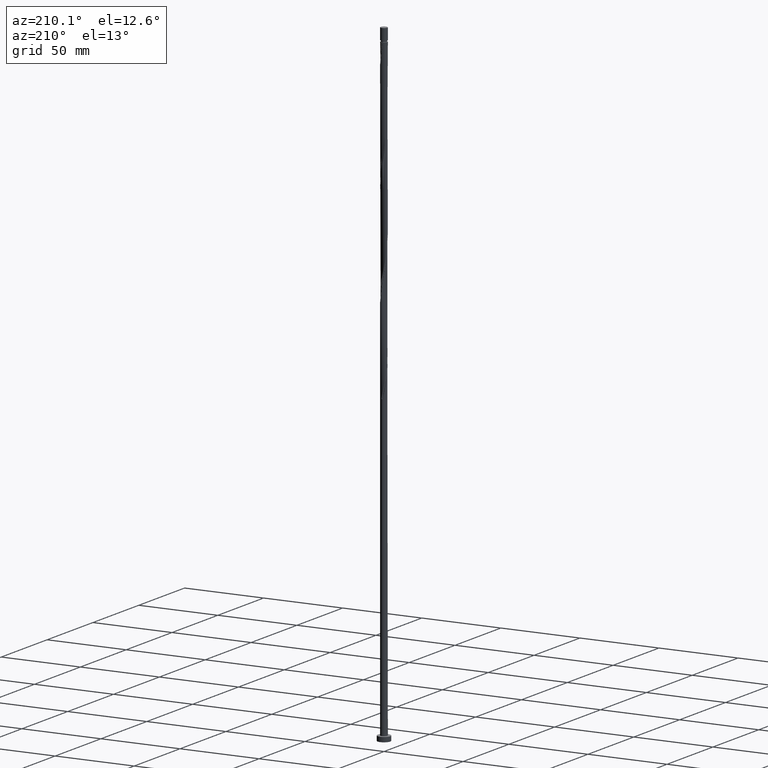
[diagram: clean part render]
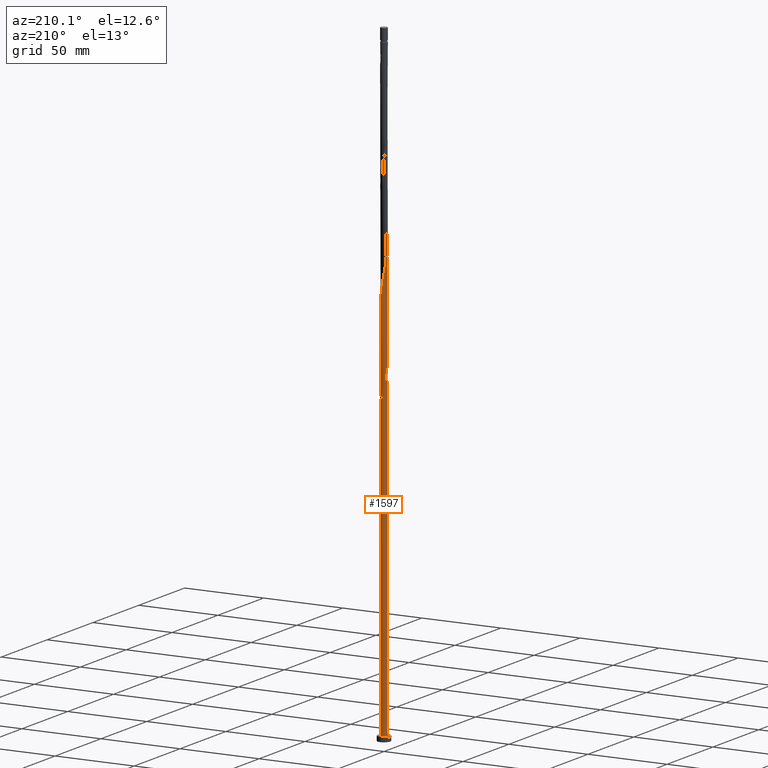
[diagram: same view with one face highlighted and labeled with its STEP entity id]
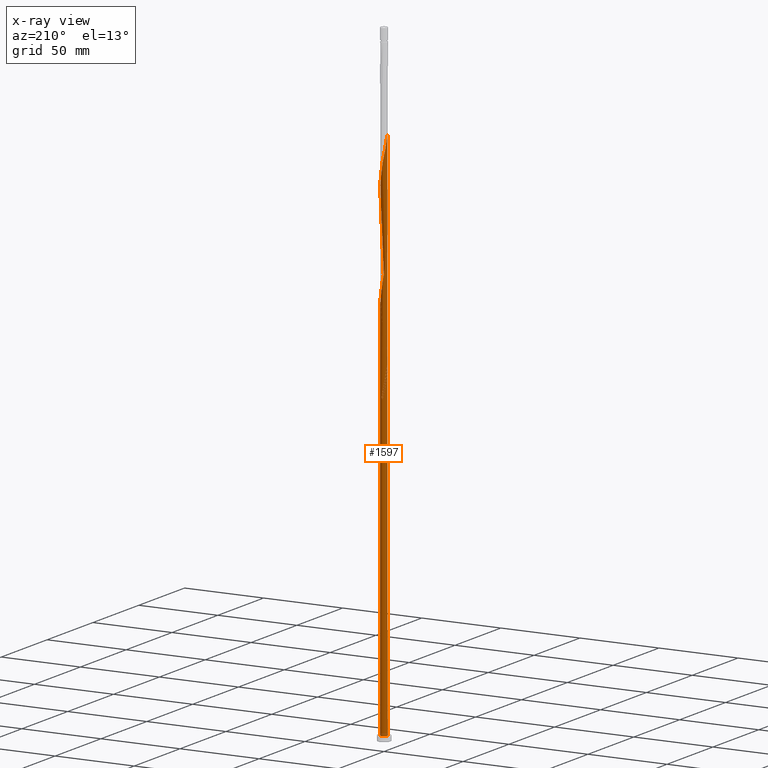
[diagram: x-ray of the same camera — body ghosted, the highlighted face saturated]
A machine part, auxiliary view. The second image highlights one B-rep face of the part: STEP entity #1597.
The next image is the same camera in x-ray: the body ghosted, the highlighted face saturated — about 0% of this face is hidden behind the body in this view.
In plain terms, the highlighted cylindrical surface (bore or boss wall) has radius 2.1 mm, axis along (-0, -0, -1).
Its self-contained STEP definition (entity closure, byte-faithful):
#1 = CARTESIAN_POINT ( 'NONE',  ( 1.427142655681894690, 1.556271400022308349, 248.6604106281170914 ) ) ;
#11 = CARTESIAN_POINT ( 'NONE',  ( 1.573332919195986168, 1.390907446731899810, 247.5492995170060340 ) ) ;
#14 = EDGE_CURVE ( 'NONE', #1037, #146, #1280, .T. ) ;
#20 = CARTESIAN_POINT ( 'NONE',  ( -0.4552981849463086372, -2.050049648858438989, 287.5492995170060340 ) ) ;
#28 = CARTESIAN_POINT ( 'NONE',  ( 1.696923011119768177, -1.256649961017937134, 299.7715217392282625 ) ) ;
#33 = DIRECTION ( 'NONE',  ( 0.000000000000000000, 0.000000000000000000, 1.000000000000000000 ) ) ;
#36 = CARTESIAN_POINT ( 'NONE',  ( -0.2398292843463723512, 2.097903416405067833, 195.3270772947838623 ) ) ;
#38 = CARTESIAN_POINT ( 'NONE',  ( -0.2398292843463734614, -2.097903416405071386, 288.6604106281171198 ) ) ;
#66 = CARTESIAN_POINT ( 'NONE',  ( -1.809018200618933481, 1.066514486460193867, 334.2159661836726627 ) ) ;
#76 = CARTESIAN_POINT ( 'NONE',  ( -1.398568953795476855, 1.581999276761399731, 330.8826328503393484 ) ) ;
#83 = ORIENTED_EDGE ( 'NONE', *, *, #1155, .F. ) ;
#88 = CARTESIAN_POINT ( 'NONE',  ( 0.2398292843463737667, 2.097903416405071386, 321.9937439614504910 ) ) ;
#92 = CARTESIAN_POINT ( 'NONE',  ( -1.828137739088105951, 1.033398474414312540, 205.3270772947838338 ) ) ;
#95 = CARTESIAN_POINT ( 'NONE',  ( -1.072389146410157146, -1.818982778603431605, 217.5492995170060055 ) ) ;
#98 = CARTESIAN_POINT ( 'NONE',  ( -1.218829837953688155, 1.710103454798510336, 329.7715217392282625 ) ) ;
#106 = CARTESIAN_POINT ( 'NONE',  ( -1.573332919195985280, -1.390907446731900476, 214.2159661836726912 ) ) ;
#116 = CARTESIAN_POINT ( 'NONE',  ( 0.6341992397615457966, -2.014077494656063561, 226.4381884058948344 ) ) ;
#146 = VERTEX_POINT ( 'NONE', #739 ) ;
#158 = CARTESIAN_POINT ( 'NONE',  ( 0.8366449809367224599, -1.926142563745842473, 294.2159661836726059 ) ) ;
#167 = CARTESIAN_POINT ( 'NONE',  ( -0.6341992397615465737, 2.014077494656062228, 259.7715217392282625 ) ) ;
#170 = CIRCLE ( 'NONE', #198, 2.100000000000000089 ) ;
#173 = CARTESIAN_POINT ( 'NONE',  ( -1.921113390118097897, 0.8763790119024507108, 201.9937439614504910 ) ) ;
#175 = CARTESIAN_POINT ( 'NONE',  ( -0.4552981849463068054, 2.050049648858437212, 196.4381884058949481 ) ) ;
#177 = CARTESIAN_POINT ( 'NONE',  ( 1.828137739088109504, 1.033398474414313428, 245.3270772947838054 ) ) ;
#183 = CARTESIAN_POINT ( 'NONE',  ( 0.4178947235847844666, 2.057999999999999385, 191.9937439614504626 ) ) ;
#184 = CARTESIAN_POINT ( 'NONE',  ( -0.4178947235847837449, 2.058000000000002938, 258.6604106281172335 ) ) ;
#186 = DIRECTION ( 'NONE',  ( -0.000000000000000000, -0.000000000000000000, -1.000000000000000000 ) ) ;
#188 = CARTESIAN_POINT ( 'NONE',  ( -2.086410881982747600, 0.2385154744329716636, 205.3270772947837486 ) ) ;
#198 = AXIS2_PLACEMENT_3D ( 'NONE', #1085, #924, #658 ) ;
#206 = DIRECTION ( 'NONE',  ( 1.000000000000000000, 0.000000000000000000, 0.000000000000000000 ) ) ;
#208 = ORIENTED_EDGE ( 'NONE', *, *, #912, .F. ) ;
#218 = VERTEX_POINT ( 'NONE', #948 ) ;
#234 = CARTESIAN_POINT ( 'NONE',  ( -2.069336039341715949, 0.4201966045504072489, 208.6604106281171198 ) ) ;
#237 = CARTESIAN_POINT ( 'NONE',  ( -2.003044167403931208, -0.6307250299687712225, 209.7715217392283193 ) ) ;
#241 = CARTESIAN_POINT ( 'NONE',  ( 1.072389146410158034, 1.818982778603431161, 317.5492995170059771 ) ) ;
#256 = VECTOR ( 'NONE', #186, 1000.000000000000000 ) ;
#262 = CARTESIAN_POINT ( 'NONE',  ( -0.6707670855462438686, -2.002195881311807479, 219.7715217392282341 ) ) ;
#264 = DIRECTION ( 'NONE',  ( -1.000000000000000000, 0.000000000000000000, 0.000000000000000000 ) ) ;
#280 = CARTESIAN_POINT ( 'NONE',  ( 1.547745982457622294, -1.419324618889668654, 231.9937439614504342 ) ) ;
#289 = VECTOR ( 'NONE', #1079, 1000.000000000000000 ) ;
#300 = CARTESIAN_POINT ( 'NONE',  ( -2.003044167403931208, -0.6307250299687712225, 276.4381884058948913 ) ) ;
#308 = CARTESIAN_POINT ( 'NONE',  ( 2.003044167403931208, 0.6307250299687703343, 243.1048550725616053 ) ) ;
#313 = CARTESIAN_POINT ( 'NONE',  ( -1.547745982457622960, 1.419324618889668432, 198.6604106281171198 ) ) ;
#318 = CARTESIAN_POINT ( 'NONE',  ( 0.8715781159782003407, 1.910589329957619986, 251.9937439614504058 ) ) ;
#325 = CARTESIAN_POINT ( 'NONE',  ( -0.01911953846917524569, 2.099912960874503298, 194.2159661836727196 ) ) ;
#328 = CARTESIAN_POINT ( 'NONE',  ( 1.249765901046026251, 1.687627089312869755, 249.7715217392282057 ) ) ;
#339 = CARTESIAN_POINT ( 'NONE',  ( 2.100000000000000089, 0.000000000000000000, 3.000000000000000000 ) ) ;
#354 = CARTESIAN_POINT ( 'NONE',  ( 2.069336039341719058, 0.4201966045504071934, 308.6604106281170630 ) ) ;
#357 = CARTESIAN_POINT ( 'NONE',  ( -2.003044167403927212, 0.6307250299687712225, 207.5492995170060624 ) ) ;
#361 = CARTESIAN_POINT ( 'NONE',  ( 0.01911953846917683469, 2.099912960874507295, 323.1048550725615200 ) ) ;
#370 = CARTESIAN_POINT ( 'NONE',  ( -2.086410881982747600, 0.2385154744329716636, 338.6604106281171198 ) ) ;
#376 = CARTESIAN_POINT ( 'NONE',  ( -0.8715781159782001186, -1.910589329957619986, 218.6604106281171767 ) ) ;
#378 = EDGE_CURVE ( 'NONE', #1686, #1301, #1343, .T. ) ;
#387 = CARTESIAN_POINT ( 'NONE',  ( -1.072389146410154259, 1.818982778603428940, 199.7715217392282909 ) ) ;
#389 = CARTESIAN_POINT ( 'NONE',  ( -0.4552981849463086372, -2.050049648858438989, 220.8826328503393484 ) ) ;
#395 = CARTESIAN_POINT ( 'NONE',  ( 1.427142655681894690, 1.556271400022308349, 315.3270772947837486 ) ) ;
#396 = ORIENTED_EDGE ( 'NONE', *, *, #14, .F. ) ;
#403 = CARTESIAN_POINT ( 'NONE',  ( -2.100000000000003197, 1.846129304452060381E-15, 206.5349673845956318 ) ) ;
#417 = CARTESIAN_POINT ( 'NONE',  ( 1.696923011119768177, -1.256649961017937134, 233.1048550725615485 ) ) ;
#425 = ORIENTED_EDGE ( 'NONE', *, *, #1883, .T. ) ;
#448 = CARTESIAN_POINT ( 'NONE',  ( -2.086410881982747600, 0.2385154744329716636, 271.9937439614505479 ) ) ;
#458 = CARTESIAN_POINT ( 'NONE',  ( 0.01911953846917683469, 2.099912960874507295, 256.4381884058948913 ) ) ;
#466 = CARTESIAN_POINT ( 'NONE',  ( 1.991227642780769136, -0.6670925532681033499, 303.1048550725615769 ) ) ;
#476 = CARTESIAN_POINT ( 'NONE',  ( -1.696923011119769065, 1.256649961017936912, 266.4381884058949481 ) ) ;
#481 = CARTESIAN_POINT ( 'NONE',  ( -1.991227642780769136, 0.6670925532681024617, 203.1048550725616053 ) ) ;
#488 = DIRECTION ( 'NONE',  ( 0.000000000000000000, 1.000000000000000000, -2.643388153869420094E-14 ) ) ;
#494 = CARTESIAN_POINT ( 'NONE',  ( -1.398568953795476855, 1.581999276761399731, 197.5492995170060340 ) ) ;
#506 = CARTESIAN_POINT ( 'NONE',  ( -1.072389146410157146, -1.818982778603431605, 284.2159661836726627 ) ) ;
#535 = CARTESIAN_POINT ( 'NONE',  ( -1.249765901046022920, 1.687627089312867756, 200.8826328503394052 ) ) ;
#538 = CARTESIAN_POINT ( 'NONE',  ( -2.100000000000000089, 0.000000000000000000, 400.0000000000000000 ) ) ;
#542 = ORIENTED_EDGE ( 'NONE', *, *, #673, .T. ) ;
#547 = CARTESIAN_POINT ( 'NONE',  ( 1.921113390118097897, -0.8763790119024510439, 235.3270772947838338 ) ) ;
#571 = CARTESIAN_POINT ( 'NONE',  ( -0.01911953846917656755, -2.099912960874507295, 223.1048550725615485 ) ) ;
#591 = CARTESIAN_POINT ( 'NONE',  ( 2.069336039341719058, 0.4201966045504071934, 241.9937439614504626 ) ) ;
#604 = CARTESIAN_POINT ( 'NONE',  ( -1.547745982457622960, 1.419324618889668432, 265.3270772947837486 ) ) ;
#613 = CARTESIAN_POINT ( 'NONE',  ( -2.061341895443440375, 0.4578060946337542680, 270.8826328503393484 ) ) ;
#624 = CARTESIAN_POINT ( 'NONE',  ( -0.2015902074080199724, 2.101922505343943204, 257.5492995170059203 ) ) ;
#632 = CARTESIAN_POINT ( 'NONE',  ( -1.398568953795476855, 1.581999276761399731, 264.2159661836727196 ) ) ;
#639 = CARTESIAN_POINT ( 'NONE',  ( -2.061341895443440375, 0.4578060946337542680, 204.2159661836726627 ) ) ;
#646 = CARTESIAN_POINT ( 'NONE',  ( -0.6341992397615465737, 2.014077494656062228, 193.1048550725615769 ) ) ;
#658 = DIRECTION ( 'NONE',  ( 1.000000000000000000, 0.000000000000000000, 0.000000000000000000 ) ) ;
#663 = CARTESIAN_POINT ( 'NONE',  ( -2.100000000000002753, 4.932977088819269948E-16, 339.8683007179288325 ) ) ;
#672 = CARTESIAN_POINT ( 'NONE',  ( -2.100000000000001865, 0.1196448486375144421, 339.2627094085442536 ) ) ;
#673 = EDGE_CURVE ( 'NONE', #742, #696, #827, .T. ) ;
#680 = CARTESIAN_POINT ( 'NONE',  ( 2.111479868522056158, -0.01922485423219033943, 239.7715217392282341 ) ) ;
#688 = CARTESIAN_POINT ( 'NONE',  ( -1.719523182710072540, 1.225543493441490606, 204.2159661836727196 ) ) ;
#691 = CARTESIAN_POINT ( 'NONE',  ( 0.4178947235847839670, -2.058000000000002938, 225.3270772947838338 ) ) ;
#696 = VERTEX_POINT ( 'NONE', #1326 ) ;
#710 = CARTESIAN_POINT ( 'NONE',  ( 1.218829837953687489, -1.710103454798511224, 229.7715217392282341 ) ) ;
#718 = CARTESIAN_POINT ( 'NONE',  ( -1.427142655681894468, -1.556271400022308793, 215.3270772947838054 ) ) ;
#734 = CARTESIAN_POINT ( 'NONE',  ( 1.936752295466143803, 0.8412534553871336973, 310.8826328503392347 ) ) ;
#739 = CARTESIAN_POINT ( 'NONE',  ( 0.4178947235847844666, 2.057999999999999385, 191.9937439614504626 ) ) ;
#742 = VERTEX_POINT ( 'NONE', #339 ) ;
#744 = CARTESIAN_POINT ( 'NONE',  ( 0.2398292843463737667, 2.097903416405071386, 255.3270772947838338 ) ) ;
#753 = CARTESIAN_POINT ( 'NONE',  ( 0.4178947235847839670, -2.058000000000002938, 291.9937439614504910 ) ) ;
#761 = CARTESIAN_POINT ( 'NONE',  ( 1.039090722111898568, -1.838207632835620942, 295.3270772947838623 ) ) ;
#769 = CARTESIAN_POINT ( 'NONE',  ( -2.111479868522055714, 0.01922485423218964554, 273.1048550725615200 ) ) ;
#771 = LINE ( 'NONE', #882, #256 ) ;
#773 = CARTESIAN_POINT ( 'NONE',  ( -2.100000000000003197, 1.846129304452060381E-15, 206.5349673845956318 ) ) ;
#782 = CARTESIAN_POINT ( 'NONE',  ( 0.000000000000000000, 0.000000000000000000, 3.000000000000000000 ) ) ;
#797 = ORIENTED_EDGE ( 'NONE', *, *, #378, .F. ) ;
#805 = CARTESIAN_POINT ( 'NONE',  ( -1.991227642780769136, 0.6670925532681024617, 336.4381884058948913 ) ) ;
#808 = LINE ( 'NONE', #538, #289 ) ;
#826 = CARTESIAN_POINT ( 'NONE',  ( -1.547745982457622960, 1.419324618889668432, 331.9937439614506047 ) ) ;
#827 = CIRCLE ( 'NONE', #1369, 2.100000000000000089 ) ;
#835 = CARTESIAN_POINT ( 'NONE',  ( -1.249765901046026029, -1.687627089312869755, 216.4381884058949481 ) ) ;
#837 = FACE_OUTER_BOUND ( 'NONE', #1209, .T. ) ;
#854 = CARTESIAN_POINT ( 'NONE',  ( 2.086410881982747600, -0.2385154744329719412, 238.6604106281171482 ) ) ;
#856 = DIRECTION ( 'NONE',  ( -0.000000000000000000, -0.000000000000000000, -1.000000000000000000 ) ) ;
#871 = CARTESIAN_POINT ( 'NONE',  ( -0.6707670855462438686, -2.002195881311807479, 286.4381884058948913 ) ) ;
#880 = CARTESIAN_POINT ( 'NONE',  ( 1.719523182710076314, 1.225543493441491716, 246.4381884058948913 ) ) ;
#882 = CARTESIAN_POINT ( 'NONE',  ( -2.100000000000000089, 0.000000000000000000, 400.0000000000000000 ) ) ;
#885 = CARTESIAN_POINT ( 'NONE',  ( -0.8366449809367229040, 1.926142563745842473, 260.8826328503393484 ) ) ;
#891 = CARTESIAN_POINT ( 'NONE',  ( 0.2015902074080217488, 2.101922505343939207, 193.1048550725616053 ) ) ;
#892 = CARTESIAN_POINT ( 'NONE',  ( -1.991227642780769136, 0.6670925532681024617, 269.7715217392282057 ) ) ;
#895 = DIRECTION ( 'NONE',  ( 0.000000000000000000, -3.304235192336775117E-14, -1.000000000000000000 ) ) ;
#901 = EDGE_CURVE ( 'NONE', #218, #146, #1191, .T. ) ;
#906 = AXIS2_PLACEMENT_3D ( 'NONE', #1352, #895, #488 ) ;
#912 = EDGE_CURVE ( 'NONE', #218, #1686, #1661, .T. ) ;
#919 = CARTESIAN_POINT ( 'NONE',  ( 1.072389146410158034, 1.818982778603431161, 250.8826328503393484 ) ) ;
#924 = DIRECTION ( 'NONE',  ( 0.000000000000000000, 0.000000000000000000, 1.000000000000000000 ) ) ;
#928 = CARTESIAN_POINT ( 'NONE',  ( -0.2015902074080199724, 2.101922505343943204, 324.2159661836727196 ) ) ;
#937 = CARTESIAN_POINT ( 'NONE',  ( -2.100000000000000089, 0.1004723985021779703, 210.2773053460745700 ) ) ;
#940 = CARTESIAN_POINT ( 'NONE',  ( -1.719523182710075870, -1.225543493441491938, 213.1048550725615485 ) ) ;
#948 = CARTESIAN_POINT ( 'NONE',  ( -0.4178947235847837449, 2.058000000000002938, 191.9937439614504626 ) ) ;
#952 = CARTESIAN_POINT ( 'NONE',  ( -0.4178947235847837449, 2.058000000000002938, 325.3270772947838623 ) ) ;
#964 = AXIS2_PLACEMENT_3D ( 'NONE', #1122, #856, #264 ) ;
#966 = CARTESIAN_POINT ( 'NONE',  ( 0.4552981849463097475, 2.050049648858438989, 320.8826328503392915 ) ) ;
#985 = CARTESIAN_POINT ( 'NONE',  ( 0.8366449809367224599, -1.926142563745842473, 227.5492995170060340 ) ) ;
#1004 = CARTESIAN_POINT ( 'NONE',  ( -1.573332919195985280, -1.390907446731900476, 280.8826328503392915 ) ) ;
#1018 = CARTESIAN_POINT ( 'NONE',  ( -1.039090722111898790, 1.838207632835620942, 261.9937439614504910 ) ) ;
#1027 = CARTESIAN_POINT ( 'NONE',  ( -0.8715781159782001186, -1.910589329957619986, 285.3270772947837486 ) ) ;
#1035 = CARTESIAN_POINT ( 'NONE',  ( -0.8715781159781980092, 1.910589329957616878, 198.6604106281171767 ) ) ;
#1037 = VERTEX_POINT ( 'NONE', #1088 ) ;
#1038 = CARTESIAN_POINT ( 'NONE',  ( 0.4552981849463097475, 2.050049648858438989, 254.2159661836726912 ) ) ;
#1055 = CARTESIAN_POINT ( 'NONE',  ( -2.100000000000003642, 0.1196448486375023962, 205.9293760752110529 ) ) ;
#1065 = CARTESIAN_POINT ( 'NONE',  ( 2.090407953931888052, 0.2004858751591075683, 307.5492995170060908 ) ) ;
#1076 = ORIENTED_EDGE ( 'NONE', *, *, #1692, .F. ) ;
#1079 = DIRECTION ( 'NONE',  ( -0.000000000000000000, -0.000000000000000000, -1.000000000000000000 ) ) ;
#1085 = CARTESIAN_POINT ( 'NONE',  ( 0.000000000000000000, 0.000000000000000000, 3.000000000000000000 ) ) ;
#1088 = CARTESIAN_POINT ( 'NONE',  ( -2.100000000000000089, -8.296370558468843318E-16, 210.7858538716386363 ) ) ;
#1095 = CARTESIAN_POINT ( 'NONE',  ( -1.427142655681891581, 1.556271400022306572, 201.9937439614505195 ) ) ;
#1098 = CARTESIAN_POINT ( 'NONE',  ( 1.039090722111898568, -1.838207632835620942, 228.6604106281171198 ) ) ;
#1114 = CARTESIAN_POINT ( 'NONE',  ( 0.8715781159782003407, 1.910589329957619986, 318.6604106281170630 ) ) ;
#1122 = CARTESIAN_POINT ( 'NONE',  ( 0.000000000000000000, 0.000000000000000000, 400.0000000000000000 ) ) ;
#1152 = CARTESIAN_POINT ( 'NONE',  ( -1.218829837953688155, 1.710103454798510336, 263.1048550725615769 ) ) ;
#1155 = EDGE_CURVE ( 'NONE', #1686, #696, #808, .T. ) ;
#1164 = CARTESIAN_POINT ( 'NONE',  ( 1.398568953795476411, -1.581999276761400397, 297.5492995170059771 ) ) ;
#1173 = CARTESIAN_POINT ( 'NONE',  ( 1.547745982457622294, -1.419324618889668654, 298.6604106281172335 ) ) ;
#1181 = CARTESIAN_POINT ( 'NONE',  ( 1.921113390118097897, -0.8763790119024510439, 301.9937439614504342 ) ) ;
#1186 = CARTESIAN_POINT ( 'NONE',  ( -1.696923011119769065, 1.256649961017936912, 199.7715217392282057 ) ) ;
#1191 = CIRCLE ( 'NONE', #906, 2.100000000000000089 ) ;
#1193 = CARTESIAN_POINT ( 'NONE',  ( -1.921113390118097897, 0.8763790119024507108, 268.6604106281170061 ) ) ;
#1196 = ORIENTED_EDGE ( 'NONE', *, *, #901, .T. ) ;
#1209 = EDGE_LOOP ( 'NONE', ( #1076, #797, #1647, #425, #542, #83, #208, #1196, #396 ) ) ;
#1237 = CARTESIAN_POINT ( 'NONE',  ( 2.090407953931888052, 0.2004858751591075683, 240.8826328503393768 ) ) ;
#1280 =( BOUNDED_CURVE ( )  B_SPLINE_CURVE ( 2, ( #1537, #937, #1528, #234, #357, #1389, #92, #688, #1834, #1095, #535, #387, #1035, #1621, #175, #36, #325, #891, #183 ),
 .UNSPECIFIED., .F., .T. ) 
 B_SPLINE_CURVE_WITH_KNOTS ( ( 3, 2, 2, 2, 2, 2, 2, 2, 2, 3 ),
 ( 0.9295286012773115170, 0.9333333333333333481, 0.9416666666666666519, 0.9499999999999999556, 0.9583333333333333703, 0.9666666666666666741, 0.9749999999999999778, 0.9833333333333332815, 0.9916666666666666963, 1.000000000000000000 ),
 .UNSPECIFIED. ) 
 CURVE ( )  GEOMETRIC_REPRESENTATION_ITEM ( )  RATIONAL_B_SPLINE_CURVE ( ( 0.9066196499552647836, 0.9068171577856775079, 0.9090909090909764512, 0.9041108139712246139, 0.9090909090909764512, 0.9041108139712246139, 0.9090909090909764512, 0.9041108139712246139, 0.9090909090909764512, 0.9041108139712246139, 0.9090909090909764512, 0.9041108139712246139, 0.9090909090909764512, 0.9041108139712246139, 0.9090909090909764512, 0.9041108139712246139, 0.9090909090909764512, 0.9041108139712246139, 0.9090909090909764512 ) ) 
 REPRESENTATION_ITEM ( '' )  );
#1286 = CARTESIAN_POINT ( 'NONE',  ( -2.100000000000002753, 4.932977088819269948E-16, 339.8683007179288893 ) ) ;
#1301 = VERTEX_POINT ( 'NONE', #1286 ) ;
#1302 = CARTESIAN_POINT ( 'NONE',  ( 1.828137739088109504, 1.033398474414313428, 311.9937439614504910 ) ) ;
#1315 = CARTESIAN_POINT ( 'NONE',  ( 1.936752295466143803, 0.8412534553871336973, 244.2159661836727196 ) ) ;
#1322 = CARTESIAN_POINT ( 'NONE',  ( -1.249765901046026029, -1.687627089312869755, 283.1048550725617474 ) ) ;
#1326 = CARTESIAN_POINT ( 'NONE',  ( -2.100000000000000089, 0.000000000000000000, 3.000000000000000000 ) ) ;
#1329 = CARTESIAN_POINT ( 'NONE',  ( 1.218829837953687489, -1.710103454798511224, 296.4381884058949481 ) ) ;
#1333 = CARTESIAN_POINT ( 'NONE',  ( -1.218829837953688155, 1.710103454798510336, 196.4381884058948913 ) ) ;
#1339 = CARTESIAN_POINT ( 'NONE',  ( -0.01911953846917656755, -2.099912960874507295, 289.7715217392282625 ) ) ;
#1343 =( BOUNDED_CURVE ( )  B_SPLINE_CURVE ( 2, ( #403, #1425, #1553, #1676, #237, #1875, #1862, #940, #106, #718, #835, #95, #376, #262, #389, #1530, #571, #1414, #691, #116, #985, #1098, #710, #1850, #280, #417, #1690, #547, #1726, #1575, #854, #680, #1237, #591, #308, #1315, #177, #880, #11, #1, #328, #919, #318, #1652, #1038, #744, #458, #624, #184, #167, #885, #1018, #1152, #632, #604, #476, #1611, #1193, #892, #613, #448, #769, #1463, #1592, #300, #1764, #1623, #1804, #1004, #1745, #1322, #506, #1027, #871, #20, #38, #1339, #1453, #753, #1474, #158, #761, #1329, #1164, #1173, #28, #1773, #1181, #466, #1756, #1601, #1483, #1065, #354, #1508, #734, #1302, #1680, #1376, #395, #1406, #241, #1114, #1660, #966, #88, #361, #928, #952, #1707, #1515, #1368, #98, #76, #826, #1831, #66, #1669, #805, #1534, #370, #672, #663 ),
 .UNSPECIFIED., .F., .T. ) 
 B_SPLINE_CURVE_WITH_KNOTS ( ( 3, 2, 2, 2, 2, 2, 2, 2, 2, 2, 2, 2, 2, 2, 2, 2, 2, 2, 2, 2, 2, 2, 2, 2, 2, 2, 2, 2, 2, 2, 2, 2, 2, 2, 2, 2, 2, 2, 2, 2, 2, 2, 2, 2, 2, 2, 2, 2, 2, 2, 2, 2, 2, 2, 2, 2, 2, 2, 2, 2, 2, 3 ),
 ( 0.05452860127731164186, 0.05833333333333334814, 0.06666666666666665186, 0.07499999999999995559, 0.08333333333333337034, 0.09166666666666667407, 0.09999999999999997780, 0.1083333333333332815, 0.1166666666666666963, 0.1250000000000000000, 0.1333333333333333037, 0.1416666666666667185, 0.1500000000000000222, 0.1583333333333333259, 0.1666666666666666297, 0.1750000000000000444, 0.1833333333333333481, 0.1916666666666666519, 0.1999999999999999556, 0.2083333333333333703, 0.2166666666666666741, 0.2249999999999999778, 0.2333333333333332815, 0.2416666666666666963, 0.2500000000000000000, 0.2583333333333333037, 0.2666666666666667185, 0.2750000000000000222, 0.2833333333333333259, 0.2916666666666666297, 0.3000000000000000444, 0.3083333333333333481, 0.3166666666666666519, 0.3249999999999999556, 0.3333333333333333703, 0.3416666666666666741, 0.3499999999999999778, 0.3583333333333332815, 0.3666666666666666963, 0.3750000000000000000, 0.3833333333333333037, 0.3916666666666667185, 0.4000000000000000222, 0.4083333333333333259, 0.4166666666666666297, 0.4250000000000000444, 0.4333333333333333481, 0.4416666666666666519, 0.4499999999999999556, 0.4583333333333333703, 0.4666666666666666741, 0.4749999999999999778, 0.4833333333333332815, 0.4916666666666666963, 0.5000000000000000000, 0.5083333333333333037, 0.5166666666666666075, 0.5250000000000000222, 0.5333333333333333259, 0.5416666666666667407, 0.5500000000000000444, 0.5545286012773111839 ),
 .UNSPECIFIED. ) 
 CURVE ( )  GEOMETRIC_REPRESENTATION_ITEM ( )  RATIONAL_B_SPLINE_CURVE ( ( 0.9066196499552723331, 0.9068171577856851684, 0.9090909090909841117, 0.9041108139712322744, 0.9090909090909841117, 0.9041108139712322744, 0.9090909090909841117, 0.9041108139712322744, 0.9090909090909841117, 0.9041108139712322744, 0.9090909090909841117, 0.9041108139712322744, 0.9090909090909841117, 0.9041108139712322744, 0.9090909090909841117, 0.9041108139712322744, 0.9090909090909841117, 0.9041108139712322744, 0.9090909090909841117, 0.9041108139712322744, 0.9090909090909841117, 0.9041108139712322744, 0.9090909090909841117, 0.9041108139712322744, 0.9090909090909841117, 0.9041108139712322744, 0.9090909090909841117, 0.9041108139712322744, 0.9090909090909841117, 0.9041108139712322744, 0.9090909090909841117, 0.9041108139712322744, 0.9090909090909841117, 0.9041108139712322744, 0.9090909090909841117, 0.9041108139712322744, 0.9090909090909841117, 0.9041108139712322744, 0.9090909090909841117, 0.9041108139712322744, 0.9090909090909841117, 0.9041108139712322744, 0.9090909090909841117, 0.9041108139712322744, 0.9090909090909841117, 0.9041108139712322744, 0.9090909090909841117, 0.9041108139712322744, 0.9090909090909841117, 0.9041108139712322744, 0.9090909090909841117, 0.9041108139712322744, 0.9090909090909841117, 0.9041108139712322744, 0.9090909090909841117, 0.9041108139712322744, 0.9090909090909841117, 0.9041108139712322744, 0.9090909090909841117, 0.9041108139712322744, 0.9090909090909841117, 0.9041108139712322744, 0.9090909090909841117, 0.9041108139712322744, 0.9090909090909841117, 0.9041108139712322744, 0.9090909090909841117, 0.9041108139712322744, 0.9090909090909841117, 0.9041108139712322744, 0.9090909090909841117, 0.9041108139712322744, 0.9090909090909841117, 0.9041108139712322744, 0.9090909090909841117, 0.9041108139712322744, 0.9090909090909841117, 0.9041108139712322744, 0.9090909090909841117, 0.9041108139712322744, 0.9090909090909841117, 0.9041108139712322744, 0.9090909090909841117, 0.9041108139712322744, 0.9090909090909841117, 0.9041108139712322744, 0.9090909090909841117, 0.9041108139712322744, 0.9090909090909841117, 0.9041108139712322744, 0.9090909090909841117, 0.9041108139712322744, 0.9090909090909841117, 0.9041108139712322744, 0.9090909090909841117, 0.9041108139712322744, 0.9090909090909841117, 0.9041108139712322744, 0.9090909090909841117, 0.9041108139712322744, 0.9090909090909841117, 0.9041108139712322744, 0.9090909090909841117, 0.9041108139712322744, 0.9090909090909841117, 0.9041108139712322744, 0.9090909090909841117, 0.9041108139712322744, 0.9090909090909841117, 0.9041108139712322744, 0.9090909090909841117, 0.9041108139712322744, 0.9090909090909841117, 0.9041108139712322744, 0.9090909090909841117, 0.9041108139712322744, 0.9090909090909841117, 0.9041108139712322744, 0.9090909090909841117, 0.9041108139712322744, 0.9090909090909841117, 0.9063845652765314398, 0.9066196499552723331 ) ) 
 REPRESENTATION_ITEM ( '' )  );
#1352 = CARTESIAN_POINT ( 'NONE',  ( 0.000000000000000000, 0.000000000000000000, 191.9937439614505195 ) ) ;
#1368 = CARTESIAN_POINT ( 'NONE',  ( -1.039090722111898790, 1.838207632835620942, 328.6604106281171767 ) ) ;
#1369 = AXIS2_PLACEMENT_3D ( 'NONE', #782, #33, #206 ) ;
#1376 = CARTESIAN_POINT ( 'NONE',  ( 1.573332919195986168, 1.390907446731899810, 314.2159661836727196 ) ) ;
#1389 = CARTESIAN_POINT ( 'NONE',  ( -1.936752295466138918, 0.8412534553871342524, 206.4381884058948913 ) ) ;
#1406 = CARTESIAN_POINT ( 'NONE',  ( 1.249765901046026251, 1.687627089312869755, 316.4381884058949481 ) ) ;
#1414 = CARTESIAN_POINT ( 'NONE',  ( 0.2015902074080211659, -2.101922505343942760, 224.2159661836726627 ) ) ;
#1425 = CARTESIAN_POINT ( 'NONE',  ( -2.100000000000002753, -0.1004723985021803156, 207.0435159101596696 ) ) ;
#1453 = CARTESIAN_POINT ( 'NONE',  ( 0.2015902074080211659, -2.101922505343942760, 290.8826328503394052 ) ) ;
#1463 = CARTESIAN_POINT ( 'NONE',  ( -2.090407953931887608, -0.2004858751591087063, 274.2159661836727764 ) ) ;
#1468 = CARTESIAN_POINT ( 'NONE',  ( -1.809018200618933481, 1.066514486460193867, 200.8826328503393484 ) ) ;
#1474 = CARTESIAN_POINT ( 'NONE',  ( 0.6341992397615457966, -2.014077494656063561, 293.1048550725615200 ) ) ;
#1483 = CARTESIAN_POINT ( 'NONE',  ( 2.111479868522056158, -0.01922485423219033943, 306.4381884058949481 ) ) ;
#1486 = CARTESIAN_POINT ( 'NONE',  ( -1.039090722111898790, 1.838207632835620942, 195.3270772947838338 ) ) ;
#1508 = CARTESIAN_POINT ( 'NONE',  ( 2.003044167403931208, 0.6307250299687703343, 309.7715217392282625 ) ) ;
#1515 = CARTESIAN_POINT ( 'NONE',  ( -0.8366449809367229040, 1.926142563745842473, 327.5492995170061477 ) ) ;
#1528 = CARTESIAN_POINT ( 'NONE',  ( -2.090407953931884499, 0.2004858751591094557, 209.7715217392282625 ) ) ;
#1530 = CARTESIAN_POINT ( 'NONE',  ( -0.2398292843463734614, -2.097903416405071386, 221.9937439614504910 ) ) ;
#1534 = CARTESIAN_POINT ( 'NONE',  ( -2.061341895443440375, 0.4578060946337542680, 337.5492995170059203 ) ) ;
#1537 = CARTESIAN_POINT ( 'NONE',  ( -2.100000000000000089, -8.296370558468843318E-16, 210.7858538716386363 ) ) ;
#1553 = CARTESIAN_POINT ( 'NONE',  ( -2.090407953931887608, -0.2004858751591087063, 207.5492995170060340 ) ) ;
#1575 = CARTESIAN_POINT ( 'NONE',  ( 2.061341895443440375, -0.4578060946337556003, 237.5492995170060055 ) ) ;
#1576 = CYLINDRICAL_SURFACE ( 'NONE', #964, 2.100000000000000089 ) ;
#1592 = CARTESIAN_POINT ( 'NONE',  ( -2.069336039341719058, -0.4201966045504075264, 275.3270772947837486 ) ) ;
#1597 = ADVANCED_FACE ( 'NONE', ( #837 ), #1576, .T. ) ;
#1601 = CARTESIAN_POINT ( 'NONE',  ( 2.086410881982747600, -0.2385154744329719412, 305.3270772947838054 ) ) ;
#1606 = CARTESIAN_POINT ( 'NONE',  ( -0.4178947235847837449, 2.058000000000002938, 191.9937439614504626 ) ) ;
#1611 = CARTESIAN_POINT ( 'NONE',  ( -1.809018200618933481, 1.066514486460193867, 267.5492995170060340 ) ) ;
#1615 = CARTESIAN_POINT ( 'NONE',  ( -0.8366449809367229040, 1.926142563745842473, 194.2159661836727196 ) ) ;
#1621 = CARTESIAN_POINT ( 'NONE',  ( -0.6707670855462412041, 2.002195881311803927, 197.5492995170060340 ) ) ;
#1623 = CARTESIAN_POINT ( 'NONE',  ( -1.828137739088109504, -1.033398474414313650, 278.6604106281171767 ) ) ;
#1647 = ORIENTED_EDGE ( 'NONE', *, *, #1155, .T. ) ;
#1652 = CARTESIAN_POINT ( 'NONE',  ( 0.6707670855462439796, 2.002195881311807035, 253.1048550725615769 ) ) ;
#1660 = CARTESIAN_POINT ( 'NONE',  ( 0.6707670855462439796, 2.002195881311807035, 319.7715217392284330 ) ) ;
#1661 =( BOUNDED_CURVE ( )  B_SPLINE_CURVE ( 2, ( #1606, #646, #1615, #1486, #1333, #494, #313, #1186, #1468, #173, #481, #639, #188, #1055, #773 ),
 .UNSPECIFIED., .F., .T. ) 
 B_SPLINE_CURVE_WITH_KNOTS ( ( 3, 2, 2, 2, 2, 2, 2, 3 ),
 ( 0.000000000000000000, 0.008333333333333303727, 0.01666666666666671848, 0.02500000000000002220, 0.03333333333333332593, 0.04166666666666662966, 0.05000000000000004441, 0.05452860127731164186 ),
 .UNSPECIFIED. ) 
 CURVE ( )  GEOMETRIC_REPRESENTATION_ITEM ( )  RATIONAL_B_SPLINE_CURVE ( ( 0.9090909090909841117, 0.9041108139712322744, 0.9090909090909841117, 0.9041108139712322744, 0.9090909090909841117, 0.9041108139712322744, 0.9090909090909841117, 0.9041108139712322744, 0.9090909090909841117, 0.9041108139712322744, 0.9090909090909841117, 0.9041108139712322744, 0.9090909090909841117, 0.9063845652765312177, 0.9066196499552723331 ) ) 
 REPRESENTATION_ITEM ( '' )  );
#1669 = CARTESIAN_POINT ( 'NONE',  ( -1.921113390118097897, 0.8763790119024507108, 335.3270772947838623 ) ) ;
#1676 = CARTESIAN_POINT ( 'NONE',  ( -2.069336039341719058, -0.4201966045504075264, 208.6604106281170914 ) ) ;
#1680 = CARTESIAN_POINT ( 'NONE',  ( 1.719523182710076314, 1.225543493441491716, 313.1048550725614632 ) ) ;
#1686 = VERTEX_POINT ( 'NONE', #1716 ) ;
#1690 = CARTESIAN_POINT ( 'NONE',  ( 1.809018200618933481, -1.066514486460194533, 234.2159661836727764 ) ) ;
#1692 = EDGE_CURVE ( 'NONE', #1301, #1037, #771, .T. ) ;
#1707 = CARTESIAN_POINT ( 'NONE',  ( -0.6341992397615465737, 2.014077494656062228, 326.4381884058947776 ) ) ;
#1716 = CARTESIAN_POINT ( 'NONE',  ( -2.100000000000003197, 1.846129304452060381E-15, 206.5349673845956318 ) ) ;
#1726 = CARTESIAN_POINT ( 'NONE',  ( 1.991227642780769136, -0.6670925532681033499, 236.4381884058949197 ) ) ;
#1745 = CARTESIAN_POINT ( 'NONE',  ( -1.427142655681894468, -1.556271400022308793, 281.9937439614504910 ) ) ;
#1756 = CARTESIAN_POINT ( 'NONE',  ( 2.061341895443440375, -0.4578060946337556003, 304.2159661836727764 ) ) ;
#1764 = CARTESIAN_POINT ( 'NONE',  ( -1.936752295466142471, -0.8412534553871348075, 277.5492995170060340 ) ) ;
#1773 = CARTESIAN_POINT ( 'NONE',  ( 1.809018200618933481, -1.066514486460194533, 300.8826328503393484 ) ) ;
#1804 = CARTESIAN_POINT ( 'NONE',  ( -1.719523182710075870, -1.225543493441491938, 279.7715217392283193 ) ) ;
#1831 = CARTESIAN_POINT ( 'NONE',  ( -1.696923011119769065, 1.256649961017936912, 333.1048550725615200 ) ) ;
#1834 = CARTESIAN_POINT ( 'NONE',  ( -1.573332919195981949, 1.390907446731898256, 203.1048550725616622 ) ) ;
#1850 = CARTESIAN_POINT ( 'NONE',  ( 1.398568953795476411, -1.581999276761400397, 230.8826328503392915 ) ) ;
#1862 = CARTESIAN_POINT ( 'NONE',  ( -1.828137739088109504, -1.033398474414313650, 211.9937439614505195 ) ) ;
#1875 = CARTESIAN_POINT ( 'NONE',  ( -1.936752295466142471, -0.8412534553871348075, 210.8826328503393768 ) ) ;
#1883 = EDGE_CURVE ( 'NONE', #696, #742, #170, .T. ) ;